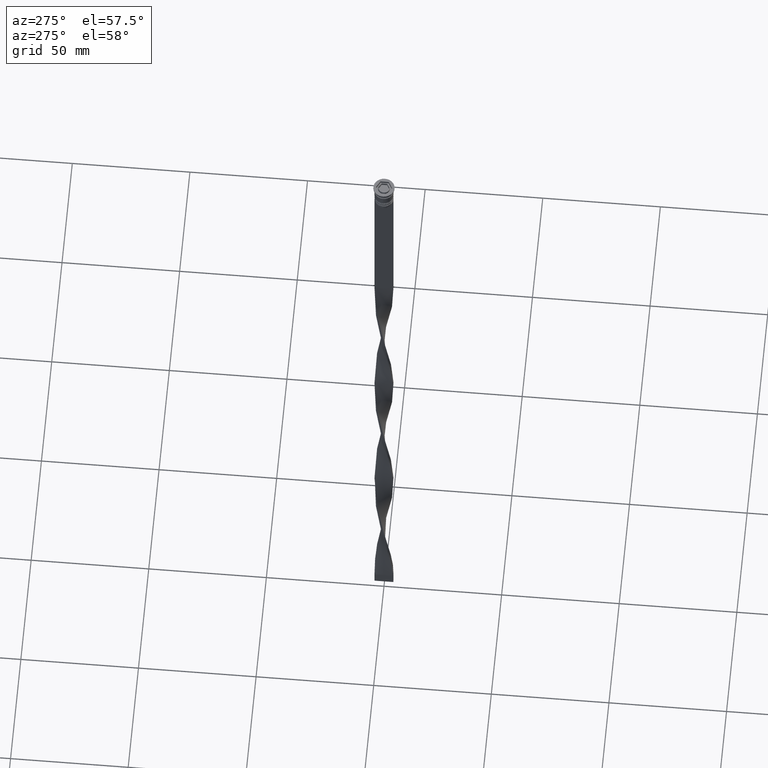
[diagram: clean part render]
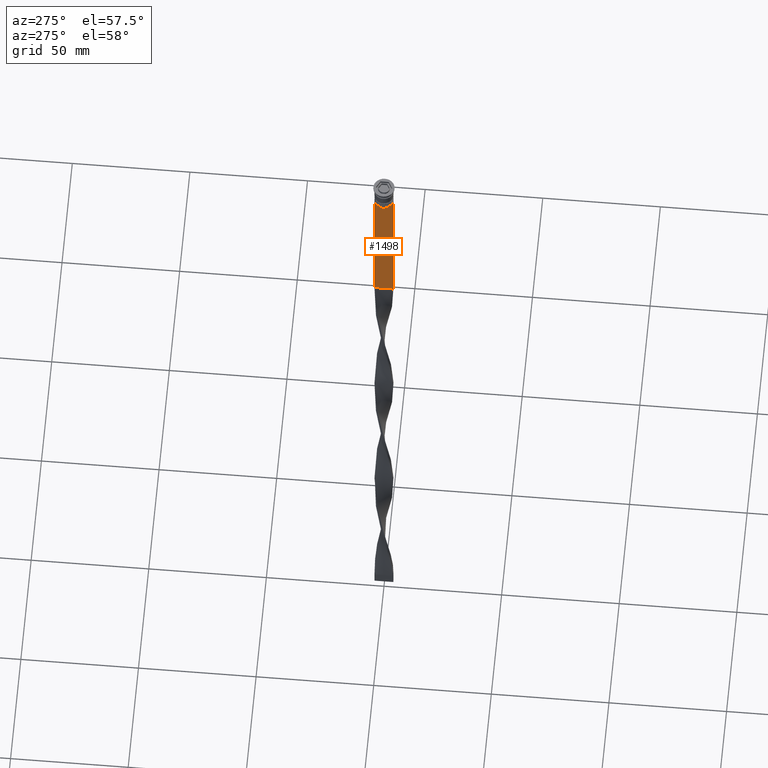
[diagram: same view with one face highlighted and labeled with its STEP entity id]
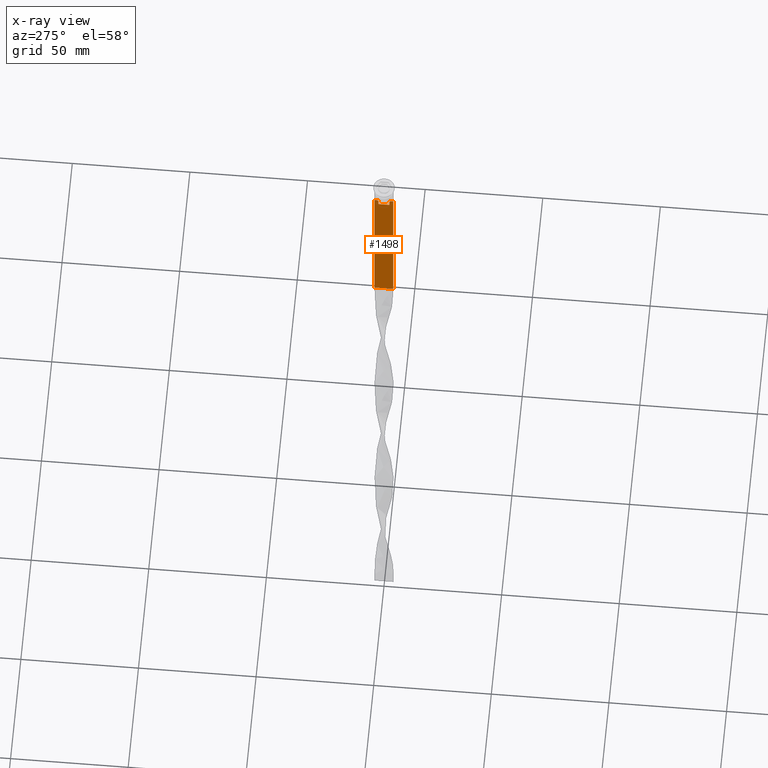
[diagram: x-ray of the same camera — body ghosted, the highlighted face saturated]
A machine part, auxiliary view. The second image highlights one B-rep face of the part: STEP entity #1498.
The next image is the same camera in x-ray: the body ghosted, the highlighted face saturated — about 0% of this face is hidden behind the body in this view.
In plain terms, the highlighted planar face has unit normal (-1, 0, 0).
Its self-contained STEP definition (entity closure, byte-faithful):
#96 = CARTESIAN_POINT ( 'NONE',  ( -0.5000000000000000000, 2.347338918861097135, -10.00000000000000000 ) ) ;
#99 = VERTEX_POINT ( 'NONE', #3333 ) ;
#214 = ORIENTED_EDGE ( 'NONE', *, *, #679, .F. ) ;
#273 = VECTOR ( 'NONE', #2364, 1000.000000000000000 ) ;
#297 = EDGE_CURVE ( 'NONE', #313, #2267, #2204, .T. ) ;
#305 = CARTESIAN_POINT ( 'NONE',  ( -0.5000000000000000000, 2.347338918861097135, 0.000000000000000000 ) ) ;
#313 = VERTEX_POINT ( 'NONE', #334 ) ;
#334 = CARTESIAN_POINT ( 'NONE',  ( -0.5000000000000000000, -4.000000000000000000, -78.50000000000000000 ) ) ;
#436 = CARTESIAN_POINT ( 'NONE',  ( -0.5000000000000000000, -4.000000000000000000, -9.500000000000000000 ) ) ;
#492 = EDGE_CURVE ( 'NONE', #3378, #99, #1493, .T. ) ;
#493 = ORIENTED_EDGE ( 'NONE', *, *, #2620, .T. ) ;
#521 = CARTESIAN_POINT ( 'NONE',  ( -0.5000000000000000000, 4.000000000000000000, -9.500000000000000000 ) ) ;
#524 = VERTEX_POINT ( 'NONE', #1152 ) ;
#640 = DIRECTION ( 'NONE',  ( 0.000000000000000000, 0.000000000000000000, -1.000000000000000000 ) ) ;
#664 = VERTEX_POINT ( 'NONE', #1248 ) ;
#679 = EDGE_CURVE ( 'NONE', #524, #3913, #3364, .T. ) ;
#682 = VERTEX_POINT ( 'NONE', #3122 ) ;
#690 = CARTESIAN_POINT ( 'NONE',  ( -0.5000000000000000000, 2.347338918861097135, -10.00000000000000000 ) ) ;
#695 = DIRECTION ( 'NONE',  ( 0.000000000000000000, -1.000000000000000000, 0.000000000000000000 ) ) ;
#764 = ORIENTED_EDGE ( 'NONE', *, *, #1034, .F. ) ;
#769 = DIRECTION ( 'NONE',  ( 0.000000000000000000, -1.000000000000000000, 0.000000000000000000 ) ) ;
#806 = AXIS2_PLACEMENT_3D ( 'NONE', #4049, #3079, #3428 ) ;
#825 = CARTESIAN_POINT ( 'NONE',  ( -0.5000000000000000000, -2.856571371417138572, -9.500000000000000000 ) ) ;
#951 = DIRECTION ( 'NONE',  ( 0.000000000000000000, 0.000000000000000000, -1.000000000000000000 ) ) ;
#995 = CARTESIAN_POINT ( 'NONE',  ( -0.5000000000000000000, 2.856571371417138572, -9.500000000000000000 ) ) ;
#1002 = EDGE_CURVE ( 'NONE', #664, #682, #3746, .T. ) ;
#1034 = EDGE_CURVE ( 'NONE', #3363, #2967, #3480, .T. ) ;
#1152 = CARTESIAN_POINT ( 'NONE',  ( -0.5000000000000000000, -3.867815921162741422, -9.500000000000000000 ) ) ;
#1169 = CARTESIAN_POINT ( 'NONE',  ( -0.5000000000000000000, -4.000000000000000000, -9.500000000000000000 ) ) ;
#1190 = CARTESIAN_POINT ( 'NONE',  ( -0.5000000000000000000, -4.000000000000000000, -1.437742251701450202 ) ) ;
#1234 = DIRECTION ( 'NONE',  ( 0.000000000000000000, 0.000000000000000000, -1.000000000000000000 ) ) ;
#1248 = CARTESIAN_POINT ( 'NONE',  ( -0.5000000000000000000, 2.347338918861097135, -12.50000000000000000 ) ) ;
#1261 = EDGE_LOOP ( 'NONE', ( #3217, #1400, #764, #493, #3704, #3206, #214, #1445, #3996, #1942, #1694, #1298 ) ) ;
#1298 = ORIENTED_EDGE ( 'NONE', *, *, #1517, .F. ) ;
#1355 = LINE ( 'NONE', #1466, #3570 ) ;
#1400 = ORIENTED_EDGE ( 'NONE', *, *, #2489, .F. ) ;
#1445 = ORIENTED_EDGE ( 'NONE', *, *, #3929, .F. ) ;
#1466 = CARTESIAN_POINT ( 'NONE',  ( -0.5000000000000000000, -4.000000000000000000, -9.500000000000000000 ) ) ;
#1493 = B_SPLINE_CURVE_WITH_KNOTS ( 'NONE', 3,
 ( #2676, #2350, #3942, #825 ),
 .UNSPECIFIED., .F., .F.,
 ( 4, 4 ),
 ( 0.01178336557230038641, 0.01249758354768160454 ),
 .UNSPECIFIED. ) ;
#1498 = ADVANCED_FACE ( 'NONE', ( #2478 ), #2146, .T. ) ;
#1514 = VECTOR ( 'NONE', #1591, 1000.000000000000000 ) ;
#1517 = EDGE_CURVE ( 'NONE', #2272, #664, #2168, .T. ) ;
#1591 = DIRECTION ( 'NONE',  ( 0.000000000000000000, -1.000000000000000000, 0.000000000000000000 ) ) ;
#1596 = VECTOR ( 'NONE', #1234, 1000.000000000000000 ) ;
#1683 = CARTESIAN_POINT ( 'NONE',  ( -0.5000000000000000000, -4.000000000000000000, -9.500000000000000000 ) ) ;
#1694 = ORIENTED_EDGE ( 'NONE', *, *, #1002, .F. ) ;
#1775 = VECTOR ( 'NONE', #3460, 1000.000000000000000 ) ;
#1805 = LINE ( 'NONE', #1843, #1596 ) ;
#1843 = CARTESIAN_POINT ( 'NONE',  ( -0.5000000000000000000, 4.000000000000000000, -1.437742251701450202 ) ) ;
#1942 = ORIENTED_EDGE ( 'NONE', *, *, #1950, .F. ) ;
#1950 = EDGE_CURVE ( 'NONE', #682, #3378, #2672, .T. ) ;
#2082 = LINE ( 'NONE', #1683, #2578 ) ;
#2146 = PLANE ( 'NONE',  #806 ) ;
#2163 = EDGE_CURVE ( 'NONE', #3953, #2272, #2264, .T. ) ;
#2168 = LINE ( 'NONE', #305, #3229 ) ;
#2180 = CARTESIAN_POINT ( 'NONE',  ( -0.5000000000000000000, -4.000000000000000000, -9.500000000000000000 ) ) ;
#2204 = LINE ( 'NONE', #3111, #1775 ) ;
#2205 = CARTESIAN_POINT ( 'NONE',  ( -0.5000000000000000000, 2.399999999999996803, -12.50000000000000000 ) ) ;
#2264 = B_SPLINE_CURVE_WITH_KNOTS ( 'NONE', 3,
 ( #995, #2274, #3537, #690 ),
 .UNSPECIFIED., .F., .F.,
 ( 4, 4 ),
 ( 0.004956812174141195064, 0.005670477137898153989 ),
 .UNSPECIFIED. ) ;
#2267 = VERTEX_POINT ( 'NONE', #2532 ) ;
#2272 = VERTEX_POINT ( 'NONE', #96 ) ;
#2274 = CARTESIAN_POINT ( 'NONE',  ( -0.5000000000000000000, 2.687094542495897631, -9.666938847453439010 ) ) ;
#2350 = CARTESIAN_POINT ( 'NONE',  ( -0.5000000000000000000, -2.517408374291112416, -9.833662228483172285 ) ) ;
#2364 = DIRECTION ( 'NONE',  ( -0.000000000000000000, -0.000000000000000000, 1.000000000000000000 ) ) ;
#2406 = DIRECTION ( 'NONE',  ( 0.000000000000000000, -1.000000000000000000, 0.000000000000000000 ) ) ;
#2478 = FACE_OUTER_BOUND ( 'NONE', #1261, .T. ) ;
#2489 = EDGE_CURVE ( 'NONE', #2967, #3953, #2082, .T. ) ;
#2500 = LINE ( 'NONE', #1190, #3952 ) ;
#2532 = CARTESIAN_POINT ( 'NONE',  ( -0.5000000000000000000, 4.000000000000000000, -78.50000000000000000 ) ) ;
#2578 = VECTOR ( 'NONE', #2936, 1000.000000000000000 ) ;
#2606 = EDGE_CURVE ( 'NONE', #3913, #313, #2500, .T. ) ;
#2620 = EDGE_CURVE ( 'NONE', #3363, #2267, #1805, .T. ) ;
#2672 = LINE ( 'NONE', #3314, #273 ) ;
#2676 = CARTESIAN_POINT ( 'NONE',  ( -0.5000000000000000000, -2.347338918861097135, -10.00000000000000000 ) ) ;
#2919 = CARTESIAN_POINT ( 'NONE',  ( -0.5000000000000000000, 2.856571371417138572, -9.500000000000000000 ) ) ;
#2936 = DIRECTION ( 'NONE',  ( 0.000000000000000000, -1.000000000000000000, 0.000000000000000000 ) ) ;
#2961 = VECTOR ( 'NONE', #2406, 1000.000000000000000 ) ;
#2967 = VERTEX_POINT ( 'NONE', #3164 ) ;
#3054 = CARTESIAN_POINT ( 'NONE',  ( -0.5000000000000000000, -2.347338918861097135, -10.00000000000000000 ) ) ;
#3079 = DIRECTION ( 'NONE',  ( -1.000000000000000000, 0.000000000000000000, 0.000000000000000000 ) ) ;
#3111 = CARTESIAN_POINT ( 'NONE',  ( -0.5000000000000000000, -4.000000000000000000, -78.50000000000000000 ) ) ;
#3122 = CARTESIAN_POINT ( 'NONE',  ( -0.5000000000000000000, -2.347338918861097135, -12.50000000000000000 ) ) ;
#3164 = CARTESIAN_POINT ( 'NONE',  ( -0.5000000000000000000, 3.867815921162741422, -9.500000000000000000 ) ) ;
#3206 = ORIENTED_EDGE ( 'NONE', *, *, #2606, .F. ) ;
#3217 = ORIENTED_EDGE ( 'NONE', *, *, #2163, .F. ) ;
#3229 = VECTOR ( 'NONE', #640, 1000.000000000000000 ) ;
#3314 = CARTESIAN_POINT ( 'NONE',  ( -0.5000000000000000000, -2.347338918861097135, 0.000000000000000000 ) ) ;
#3333 = CARTESIAN_POINT ( 'NONE',  ( -0.5000000000000000000, -2.856571371417138572, -9.500000000000000000 ) ) ;
#3363 = VERTEX_POINT ( 'NONE', #521 ) ;
#3364 = LINE ( 'NONE', #1169, #2961 ) ;
#3378 = VERTEX_POINT ( 'NONE', #3054 ) ;
#3428 = DIRECTION ( 'NONE',  ( 0.000000000000000000, 0.000000000000000000, 1.000000000000000000 ) ) ;
#3460 = DIRECTION ( 'NONE',  ( 0.000000000000000000, 1.000000000000000000, 0.000000000000000000 ) ) ;
#3480 = LINE ( 'NONE', #2180, #1514 ) ;
#3537 = CARTESIAN_POINT ( 'NONE',  ( -0.5000000000000000000, 2.517407211010871393, -9.833663366238582171 ) ) ;
#3570 = VECTOR ( 'NONE', #769, 1000.000000000000000 ) ;
#3704 = ORIENTED_EDGE ( 'NONE', *, *, #297, .F. ) ;
#3746 = LINE ( 'NONE', #2205, #3754 ) ;
#3754 = VECTOR ( 'NONE', #695, 1000.000000000000000 ) ;
#3913 = VERTEX_POINT ( 'NONE', #436 ) ;
#3929 = EDGE_CURVE ( 'NONE', #99, #524, #1355, .T. ) ;
#3942 = CARTESIAN_POINT ( 'NONE',  ( -0.5000000000000000000, -2.687095498514037839, -9.666937905752043037 ) ) ;
#3952 = VECTOR ( 'NONE', #951, 1000.000000000000000 ) ;
#3953 = VERTEX_POINT ( 'NONE', #2919 ) ;
#3996 = ORIENTED_EDGE ( 'NONE', *, *, #492, .F. ) ;
#4049 = CARTESIAN_POINT ( 'NONE',  ( -0.5000000000000000000, -4.000000000000000000, -1.437742251701450202 ) ) ;